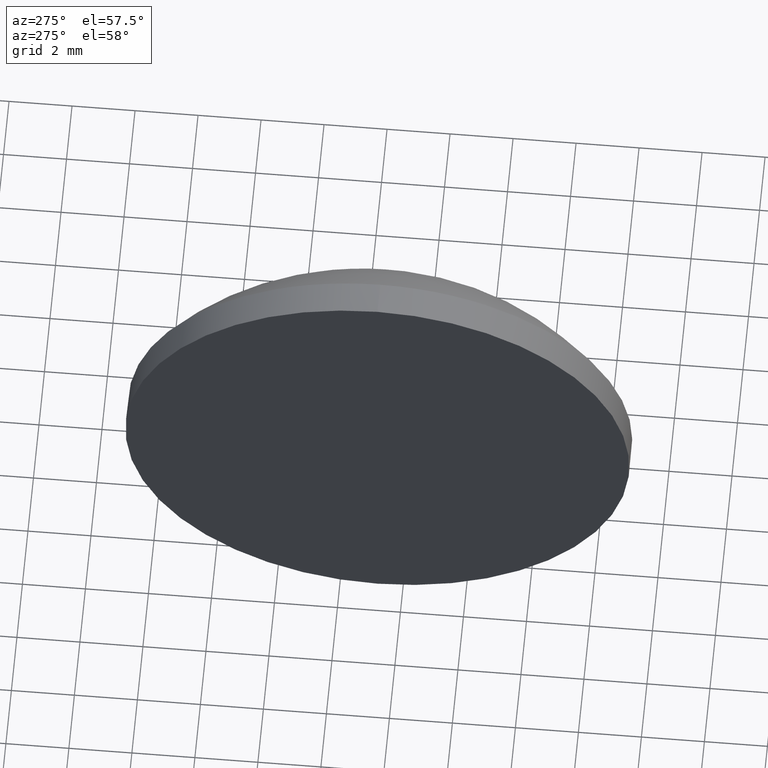
[diagram: clean part render]
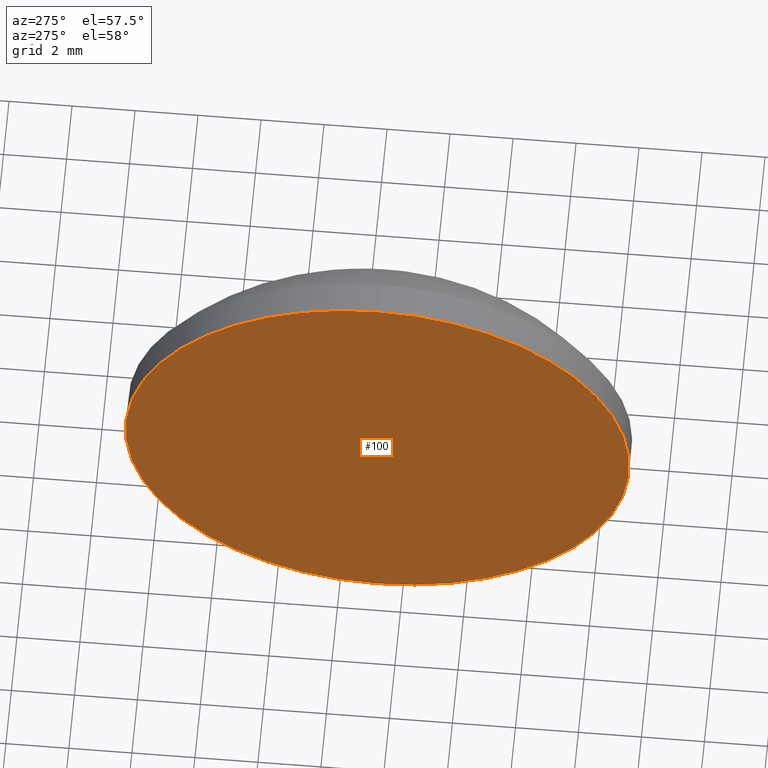
[diagram: same view with one face highlighted and labeled with its STEP entity id]
A machine part, auxiliary view. The second image highlights one B-rep face of the part: STEP entity #100.
In plain terms, the highlighted planar face has unit normal (1, 0, 0).
Its self-contained STEP definition (entity closure, byte-faithful):
#18 = CARTESIAN_POINT ( 'NONE',  ( 350.7781997499039300, 126.8000505351327700, 0.0000000000000000000 ) ) ;
#19 = EDGE_CURVE ( 'NONE', #46, #107, #103, .T. ) ;
#30 = EDGE_CURVE ( 'NONE', #107, #46, #170, .T. ) ;
#43 = AXIS2_PLACEMENT_3D ( 'NONE', #134, #50, #52 ) ;
#44 = DIRECTION ( 'NONE',  ( -1.000000000000000000, -0.0000000000000000000, -0.0000000000000000000 ) ) ;
#46 = VERTEX_POINT ( 'NONE', #99 ) ;
#50 = DIRECTION ( 'NONE',  ( -1.000000000000000000, -0.0000000000000000000, -0.0000000000000000000 ) ) ;
#52 = DIRECTION ( 'NONE',  ( 0.0000000000000000000, 0.0000000000000000000, 1.000000000000000000 ) ) ;
#58 = AXIS2_PLACEMENT_3D ( 'NONE', #18, #166, #167 ) ;
#62 = CARTESIAN_POINT ( 'NONE',  ( 350.7781997499039300, 126.8000505351327700, 0.0000000000000000000 ) ) ;
#94 = ORIENTED_EDGE ( 'NONE', *, *, #30, .T. ) ;
#96 = AXIS2_PLACEMENT_3D ( 'NONE', #62, #44, #143 ) ;
#99 = CARTESIAN_POINT ( 'NONE',  ( 350.7781997499039300, 126.8000505351327700, 7.999999999999979600 ) ) ;
#100 = ADVANCED_FACE ( 'NONE', ( #111 ), #149, .F. ) ;
#103 = CIRCLE ( 'NONE', #96, 7.999999999999979600 ) ;
#107 = VERTEX_POINT ( 'NONE', #164 ) ;
#111 = FACE_OUTER_BOUND ( 'NONE', #184, .T. ) ;
#134 = CARTESIAN_POINT ( 'NONE',  ( 350.7781997499039300, 126.8000505351327700, 0.0000000000000000000 ) ) ;
#143 = DIRECTION ( 'NONE',  ( 0.0000000000000000000, 0.0000000000000000000, 1.000000000000000000 ) ) ;
#149 = PLANE ( 'NONE',  #58 ) ;
#164 = CARTESIAN_POINT ( 'NONE',  ( 350.7781997499039300, 126.8000505351327700, -7.999999999999979600 ) ) ;
#166 = DIRECTION ( 'NONE',  ( 1.000000000000000000, 0.0000000000000000000, 0.0000000000000000000 ) ) ;
#167 = DIRECTION ( 'NONE',  ( 0.0000000000000000000, 0.0000000000000000000, -1.000000000000000000 ) ) ;
#170 = CIRCLE ( 'NONE', #43, 7.999999999999979600 ) ;
#180 = ORIENTED_EDGE ( 'NONE', *, *, #19, .T. ) ;
#184 = EDGE_LOOP ( 'NONE', ( #180, #94 ) ) ;